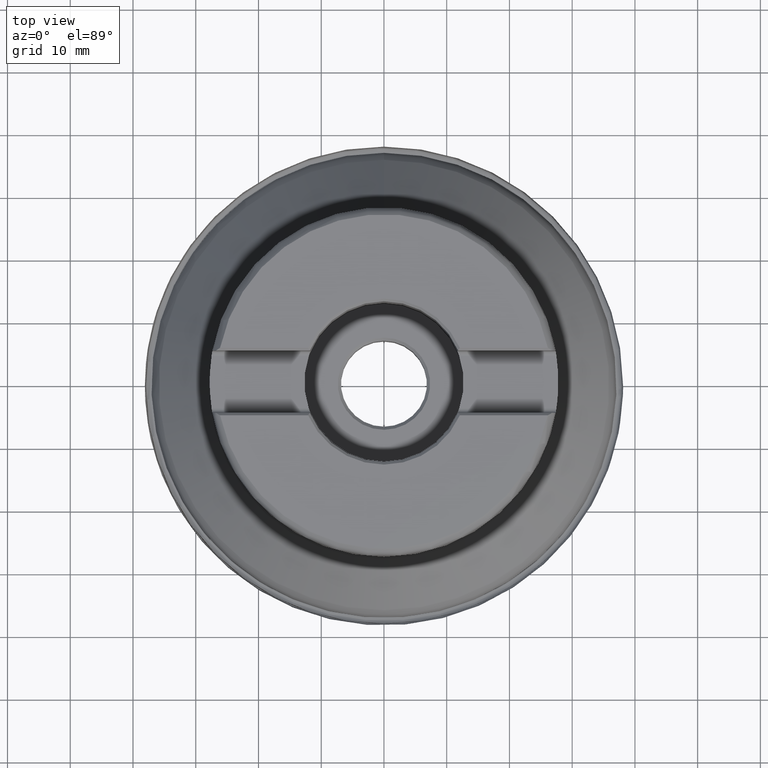
[diagram: clean part render]
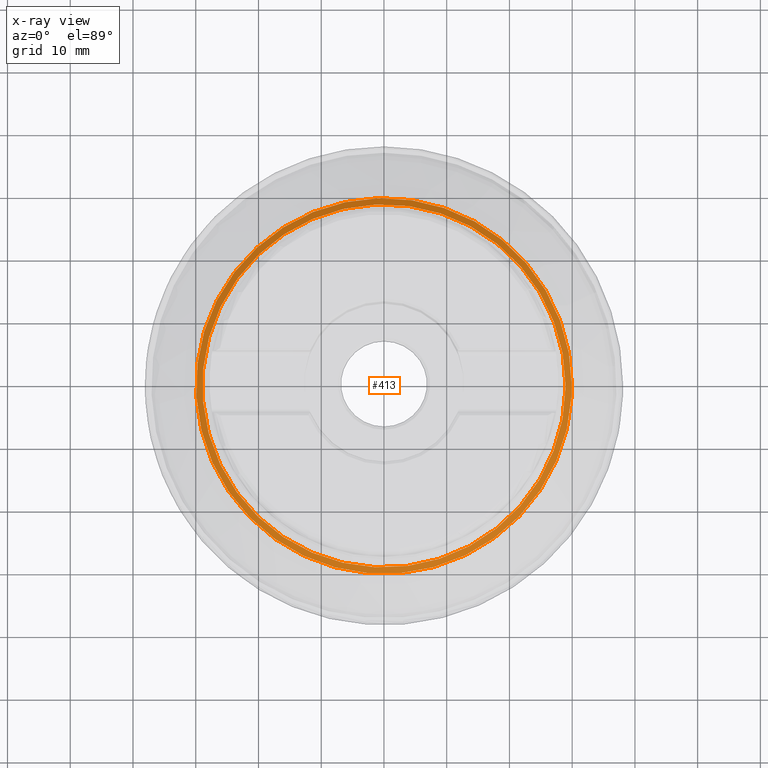
[diagram: x-ray — body ghosted, one internal face saturated and labeled with its STEP entity id]
A machine part, top view, then the same camera in x-ray: the body is ghosted and one INTERNAL B-rep face — a face not visible from any outside direction — is saturated and labeled: STEP entity #413.
In plain terms, the highlighted face is a SurfaceOfRevolution surface.
Its self-contained STEP definition (entity closure, byte-faithful):
#108=SURFACE_OF_REVOLUTION('',#1173,#132);
#132=AXIS1_PLACEMENT('',#2299,#1546);
#228=FACE_BOUND('',#556,.T.);
#229=FACE_BOUND('',#557,.T.);
#413=ADVANCED_FACE('',(#228,#229),#108,.F.);
#556=EDGE_LOOP('',(#861));
#557=EDGE_LOOP('',(#862));
#647=CIRCLE('',#1294,29.9444039942802);
#648=CIRCLE('',#1295,28.9431540716945);
#861=ORIENTED_EDGE('',*,*,#1101,.T.);
#862=ORIENTED_EDGE('',*,*,#1102,.F.);
#982=VERTEX_POINT('',#2290);
#983=VERTEX_POINT('',#2292);
#1101=EDGE_CURVE('',#982,#982,#647,.T.);
#1102=EDGE_CURVE('',#983,#983,#648,.T.);
#1173=B_SPLINE_CURVE_WITH_KNOTS('',5,(#2293,#2294,#2295,#2296,#2297,#2298),
 .UNSPECIFIED.,.F.,.F.,(6,6),(0.,1.),.UNSPECIFIED.);
#1294=AXIS2_PLACEMENT_3D('',#2289,#1542,#1543);
#1295=AXIS2_PLACEMENT_3D('',#2291,#1544,#1545);
#1542=DIRECTION('',(0.,0.,1.));
#1543=DIRECTION('',(1.,0.,0.));
#1544=DIRECTION('',(0.,0.,1.));
#1545=DIRECTION('',(1.,0.,0.));
#1546=DIRECTION('',(0.,0.,1.));
#2289=CARTESIAN_POINT('',(0.,0.,3.38576648871168));
#2290=CARTESIAN_POINT('',(29.9444039942802,0.,3.38576648871168));
#2291=CARTESIAN_POINT('',(0.,0.,4.01270370026552));
#2292=CARTESIAN_POINT('',(28.9431540716945,0.,4.01270370026552));
#2293=CARTESIAN_POINT('',(28.7301768273064,-3.50472630640744,4.01270368314661));
#2294=CARTESIAN_POINT('',(28.930896167204,-3.52456178117582,3.88880272192677));
#2295=CARTESIAN_POINT('',(29.1315363746599,-3.53980913275847,3.76403834411706));
#2296=CARTESIAN_POINT('',(29.332025008385,-3.55044925775883,3.63852530882531));
#2297=CARTESIAN_POINT('',(29.5322957259258,-3.55646585844642,3.51238967234859));
#2298=CARTESIAN_POINT('',(29.7322899184854,-3.55784571524486,3.38576647165337));
#2299=CARTESIAN_POINT('',(0.,0.,0.));